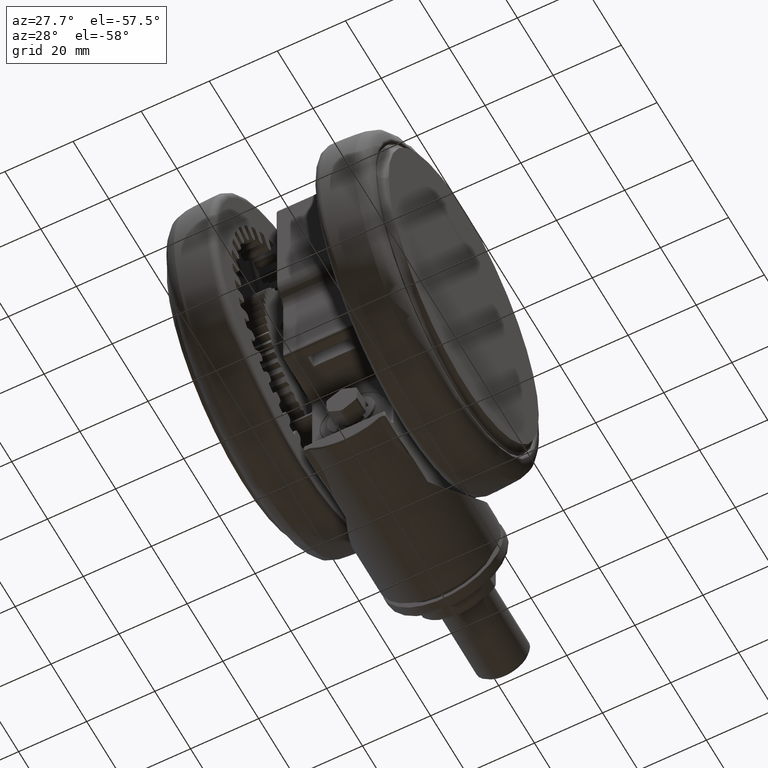
[diagram: clean part render]
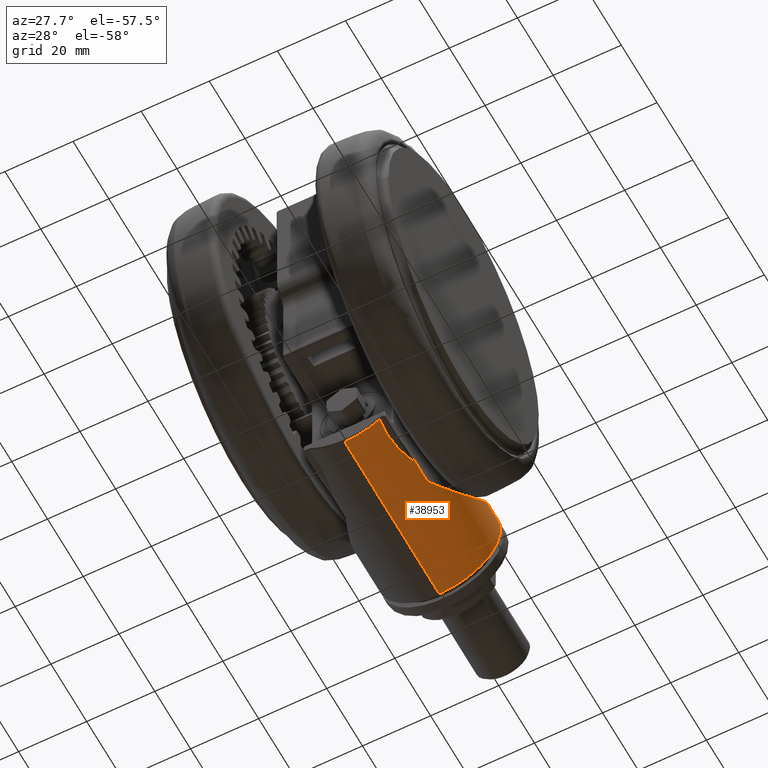
[diagram: same view with one face highlighted and labeled with its STEP entity id]
A machine part, auxiliary view. The second image highlights one B-rep face of the part: STEP entity #38953.
In plain terms, the highlighted cylindrical surface (partial cylindrical patch) has radius 18 mm, axis along (0, -1, 0).
Its self-contained STEP definition (entity closure, byte-faithful):
#259 = CARTESIAN_POINT ( 'NONE',  ( 5.208460255065405800, 34.90163937428630400, -32.59999999999991600 ) ) ;
#380 = CARTESIAN_POINT ( 'NONE',  ( -46.80610816300347900, 18.94874928790355600, -26.66894238465398100 ) ) ;
#883 = CARTESIAN_POINT ( 'NONE',  ( -10.12879878138801000, 48.67532829621426800, -20.64902920569760200 ) ) ;
#982 = CARTESIAN_POINT ( 'NONE',  ( 5.508268310410297600, 49.69569008224175400, -22.35079618797655200 ) ) ;
#1162 = CARTESIAN_POINT ( 'NONE',  ( -9.836121417387840200, 49.02316548377790900, -21.05956831018369300 ) ) ;
#1253 = CARTESIAN_POINT ( 'NONE',  ( -8.458607850521056900, 49.29505475641307300, -21.42049570559552100 ) ) ;
#1380 = ORIENTED_EDGE ( 'NONE', *, *, #35941, .T. ) ;
#2993 = CARTESIAN_POINT ( 'NONE',  ( -47.37391941154947300, 17.96354899973096100, -32.59999999999947600 ) ) ;
#3458 = CYLINDRICAL_SURFACE ( 'NONE', #15402, 18.00000000000000000 ) ;
#3866 = VECTOR ( 'NONE', #39208, 1000.000000000000100 ) ;
#4053 = CARTESIAN_POINT ( 'NONE',  ( -45.71633819742093200, 24.78885058765417400, -18.43902796048009700 ) ) ;
#4324 = CARTESIAN_POINT ( 'NONE',  ( -36.59850879199104400, 36.98245350613385100, -14.59909914041927900 ) ) ;
#4335 = VERTEX_POINT ( 'NONE', #69171 ) ;
#4583 = CARTESIAN_POINT ( 'NONE',  ( -17.98463906541136800, 48.79082047030505000, -20.59999999999991300 ) ) ;
#4980 = ORIENTED_EDGE ( 'NONE', *, *, #12434, .T. ) ;
#5840 = LINE ( 'NONE', #32859, #3866 ) ;
#6473 = CARTESIAN_POINT ( 'NONE',  ( -47.36942829705646600, 17.97133350807479200, -32.05015728534068100 ) ) ;
#6622 = DIRECTION ( 'NONE',  ( -0.02026128721468462400, -0.9997947190500676700, 0.0000000000000000000 ) ) ;
#6748 = CARTESIAN_POINT ( 'NONE',  ( -46.19583124528033100, 19.99659064075680700, -24.17847804241848000 ) ) ;
#7115 = CARTESIAN_POINT ( 'NONE',  ( -47.91585404424890300, 53.98192318317314400, -32.59999999999991600 ) ) ;
#7243 = CARTESIAN_POINT ( 'NONE',  ( -10.31607480746920100, 48.73090466135531100, -20.70758617109215600 ) ) ;
#7290 = DIRECTION ( 'NONE',  ( 0.02026128721468471700, 0.9997947190500676700, 0.0000000000000000000 ) ) ;
#9033 = VERTEX_POINT ( 'NONE', #51243 ) ;
#9205 = EDGE_CURVE ( 'NONE', #27348, #4335, #59922, .T. ) ;
#9238 = CARTESIAN_POINT ( 'NONE',  ( -47.41595668472386600, 53.97179253956579700, -32.59999999999991600 ) ) ;
#9861 = AXIS2_PLACEMENT_3D ( 'NONE', #34626, #78743, #40986 ) ;
#10358 = CARTESIAN_POINT ( 'NONE',  ( -44.58209523251809300, 26.77715708612111500, -17.06722302455355200 ) ) ;
#10608 = ORIENTED_EDGE ( 'NONE', *, *, #70661, .F. ) ;
#10632 = CARTESIAN_POINT ( 'NONE',  ( -33.97069500654485800, 39.37947829986181600, -14.97091970685104400 ) ) ;
#11330 = VERTEX_POINT ( 'NONE', #49902 ) ;
#11833 = EDGE_CURVE ( 'NONE', #25409, #26426, #70778, .T. ) ;
#12434 = EDGE_CURVE ( 'NONE', #11330, #33357, #48000, .T. ) ;
#12489 = CARTESIAN_POINT ( 'NONE',  ( -47.37391941154947300, 17.96354899973096100, -32.59999999999947600 ) ) ;
#12775 = CARTESIAN_POINT ( 'NONE',  ( -47.34500460404444800, 18.01351177711193300, -31.22402544567789900 ) ) ;
#13053 = CARTESIAN_POINT ( 'NONE',  ( -45.70494533535507700, 20.80943180607945200, -22.83139053222631200 ) ) ;
#13531 = CARTESIAN_POINT ( 'NONE',  ( -10.36808295095618200, 48.78906492903593800, -20.77277128949318200 ) ) ;
#13575 = CARTESIAN_POINT ( 'NONE',  ( -48.28055721411323000, 35.98561824027192600, -32.59999999999991600 ) ) ;
#15167 = EDGE_LOOP ( 'NONE', ( #38815, #1380, #22545, #38008, #22400, #62224, #41728, #10608, #4980, #53139 ) ) ;
#15402 = AXIS2_PLACEMENT_3D ( 'NONE', #13575, #26339, #7290 ) ;
#16689 = CARTESIAN_POINT ( 'NONE',  ( -43.26182099622145900, 28.86308397326137200, -16.00676665192270000 ) ) ;
#16810 = CARTESIAN_POINT ( 'NONE',  ( -46.93363749704237600, 22.38774754356340000, -20.77142857142849800 ) ) ;
#16972 = CARTESIAN_POINT ( 'NONE',  ( -31.94328965898068900, 41.04091219697896500, -15.41520545364266700 ) ) ;
#18229 = FACE_OUTER_BOUND ( 'NONE', #15167, .T. ) ;
#19130 = CARTESIAN_POINT ( 'NONE',  ( -47.25802734614757800, 18.16420966032198000, -29.84760922410377000 ) ) ;
#19395 = CARTESIAN_POINT ( 'NONE',  ( -45.44177878889255600, 21.23917866191993700, -22.18888977177217500 ) ) ;
#19620 = CARTESIAN_POINT ( 'NONE',  ( -9.317223563194769300, 48.61517141800131700, -20.59999999999991300 ) ) ;
#19893 = CARTESIAN_POINT ( 'NONE',  ( -10.35141086583549500, 48.82821288497991200, -20.81821663925438400 ) ) ;
#19990 = CARTESIAN_POINT ( 'NONE',  ( 0.4073160160713169000, 50.01466655658724400, -22.66917024715937500 ) ) ;
#21643 = EDGE_CURVE ( 'NONE', #26426, #40094, #26133, .T. ) ;
#22400 = ORIENTED_EDGE ( 'NONE', *, *, #21643, .T. ) ;
#22518 = CARTESIAN_POINT ( 'NONE',  ( -46.66559130463537000, 22.94968200599920400, -20.12077271807990500 ) ) ;
#22545 = ORIENTED_EDGE ( 'NONE', *, *, #45779, .T. ) ;
#23055 = CARTESIAN_POINT ( 'NONE',  ( -42.03849610139560900, 30.60930039958016000, -15.37821947593362300 ) ) ;
#23331 = CARTESIAN_POINT ( 'NONE',  ( -28.45858199122974600, 43.55429254669759600, -16.42608571866067300 ) ) ;
#23381 = EDGE_CURVE ( 'NONE', #27348, #33357, #42031, .T. ) ;
#24934 = CARTESIAN_POINT ( 'NONE',  ( -48.55545808361976200, 22.42061446323122100, -20.77142857142849800 ) ) ;
#25186 = VECTOR ( 'NONE', #32511, 1000.000000000000100 ) ;
#25201 = DIRECTION ( 'NONE',  ( -0.9997947190500677800, 0.02026128721468463100, -0.0000000000000000000 ) ) ;
#25409 = VERTEX_POINT ( 'NONE', #68070 ) ;
#25520 = CARTESIAN_POINT ( 'NONE',  ( -47.17062631404569800, 18.31622912952900600, -29.03160975076657400 ) ) ;
#25797 = CARTESIAN_POINT ( 'NONE',  ( -44.96264339509724600, 22.00920216776547600, -21.15973609959132400 ) ) ;
#26133 = B_SPLINE_CURVE_WITH_KNOTS ( 'NONE', 3,
 ( #41899, #22518, #79644, #4053, #48276, #10358, #54574, #16689, #60913, #23055, #67247, #29413, #73599, #35794, #79926, #42160, #4324, #48539, #10632, #54833, #16972, #61188, #23331, #67515, #29678, #73881, #36060, #80201, #42446, #4583 ),
 .UNSPECIFIED., .F., .F.,
 ( 4, 2, 2, 2, 2, 2, 2, 2, 2, 2, 2, 2, 2, 2, 4 ),
 ( -0.0002350967709736849700, 0.002424375685461165600, 0.005083848141896016000, 0.007743320598330867200, 0.01040279305476571700, 0.01173252928298314200, 0.01306226551120057500, 0.01572173796763544000, 0.02104068288050516700, 0.02370015533694003200, 0.02635962779337489700, 0.03167857270624460000, 0.03433804516267945100, 0.03699751761911428800, 0.04231646253198399100 ),
 .UNSPECIFIED. ) ;
#26285 = CARTESIAN_POINT ( 'NONE',  ( -10.30062889966497700, 48.86973162580477500, -20.86750403550960100 ) ) ;
#26339 = DIRECTION ( 'NONE',  ( 0.9997947190500678900, -0.02026128721468463100, 0.0000000000000000000 ) ) ;
#26385 = CARTESIAN_POINT ( 'NONE',  ( -2.794683609903971400, 49.92594403084346800, -22.44060121328792300 ) ) ;
#26426 = VERTEX_POINT ( 'NONE', #16810 ) ;
#27348 = VERTEX_POINT ( 'NONE', #9238 ) ;
#29413 = CARTESIAN_POINT ( 'NONE',  ( -41.25514471082824700, 31.65730050788932800, -15.08945188103850500 ) ) ;
#29678 = CARTESIAN_POINT ( 'NONE',  ( -25.54779935961612800, 45.29912993522994200, -17.47514633043016400 ) ) ;
#31846 = CARTESIAN_POINT ( 'NONE',  ( -47.08854409280827700, 18.45898036013048600, -28.36697905273321400 ) ) ;
#32350 = CARTESIAN_POINT ( 'NONE',  ( -9.643790475028433600, 48.62447343068365100, -20.60299232262243800 ) ) ;
#32511 = DIRECTION ( 'NONE',  ( 0.9997947190500677800, -0.02026128721468463100, 0.0000000000000000000 ) ) ;
#32634 = CARTESIAN_POINT ( 'NONE',  ( -10.20177868179733900, 48.91569713506947900, -20.92355610050705300 ) ) ;
#32732 = CARTESIAN_POINT ( 'NONE',  ( -4.710019837800829600, 49.78173366784209700, -22.17764385249739300 ) ) ;
#32859 = CARTESIAN_POINT ( 'NONE',  ( -48.64526038397755100, 17.98931329737070300, -32.59999999999991600 ) ) ;
#33184 = VECTOR ( 'NONE', #35247, 1000.000000000000100 ) ;
#33357 = VERTEX_POINT ( 'NONE', #50134 ) ;
#34626 = CARTESIAN_POINT ( 'NONE',  ( -47.78065985458819400, 35.97548759666457800, -32.59999999999991600 ) ) ;
#35247 = DIRECTION ( 'NONE',  ( 0.9997947190500677800, -0.02026128721468463100, 0.0000000000000000000 ) ) ;
#35794 = CARTESIAN_POINT ( 'NONE',  ( -40.15874696992536700, 33.04599876532141400, -14.80066505353697600 ) ) ;
#35941 = EDGE_CURVE ( 'NONE', #4335, #42458, #5840, .T. ) ;
#36060 = CARTESIAN_POINT ( 'NONE',  ( -23.31607539791044900, 46.48705694181645500, -18.34779846884720200 ) ) ;
#36867 = B_SPLINE_CURVE_WITH_KNOTS ( 'NONE', 3,
 ( #19620, #57514, #32350, #76508, #38729, #883, #45108, #7243, #51449, #13531, #57773, #19893, #64101, #26285, #70469, #32634, #76794, #38995, #1162, #45394 ),
 .UNSPECIFIED., .F., .F.,
 ( 4, 2, 2, 2, 2, 2, 2, 2, 2, 4 ),
 ( 0.0000000000000000000, 0.0004898370086316540100, 0.0007347555129474819300, 0.0009796740172633097400, 0.001102133269421225700, 0.001163362895500180800, 0.001224592521579135800, 0.001347051773737056300, 0.001469511025894976700, 0.001959348034526689700 ),
 .UNSPECIFIED. ) ;
#38008 = ORIENTED_EDGE ( 'NONE', *, *, #11833, .T. ) ;
#38232 = CARTESIAN_POINT ( 'NONE',  ( -46.90413105651305900, 18.77905623458281400, -27.18606615225969100 ) ) ;
#38729 = CARTESIAN_POINT ( 'NONE',  ( -9.968779099175728600, 48.65180171766355200, -20.62622777016942900 ) ) ;
#38815 = ORIENTED_EDGE ( 'NONE', *, *, #9205, .T. ) ;
#38824 = CARTESIAN_POINT ( 'NONE',  ( 4.235933718449901500, 49.83670947961354600, -22.51713027470440300 ) ) ;
#38953 = ADVANCED_FACE ( 'NONE', ( #18229 ), #3458, .T. ) ;
#38995 = CARTESIAN_POINT ( 'NONE',  ( -9.989350159093294900, 48.98870847976270700, -21.01461576730194000 ) ) ;
#39087 = CARTESIAN_POINT ( 'NONE',  ( -7.222161667674359200, 49.49173547976835200, -21.71011971477577200 ) ) ;
#39208 = DIRECTION ( 'NONE',  ( 0.9997947190500677800, -0.02026128721468463100, 0.0000000000000000000 ) ) ;
#40094 = VERTEX_POINT ( 'NONE', #40226 ) ;
#40226 = CARTESIAN_POINT ( 'NONE',  ( -17.98463906541136800, 48.79082047030505000, -20.59999999999991300 ) ) ;
#40986 = DIRECTION ( 'NONE',  ( 0.02026128721468471700, 0.9997947190500676700, 0.0000000000000000000 ) ) ;
#41335 = B_SPLINE_CURVE_WITH_KNOTS ( 'NONE', 3,
 ( #982, #38824, #57866, #19990, #64202, #26385, #70559, #32732, #76892, #39087, #1253, #45492 ),
 .UNSPECIFIED., .F., .F.,
 ( 4, 2, 2, 2, 2, 4 ),
 ( 0.0005012450040617497300, 0.004335061960526683700, 0.008168878916991617300, 0.01008578739522408500, 0.01200269587345655300, 0.01583651282992148300 ),
 .UNSPECIFIED. ) ;
#41728 = ORIENTED_EDGE ( 'NONE', *, *, #56674, .T. ) ;
#41899 = CARTESIAN_POINT ( 'NONE',  ( -46.93363749704237600, 22.38774754356340000, -20.77142857142849800 ) ) ;
#42031 = LINE ( 'NONE', #7115, #25186 ) ;
#42160 = CARTESIAN_POINT ( 'NONE',  ( -37.83677632689593700, 35.71397966096111500, -14.54922444642155500 ) ) ;
#42446 = CARTESIAN_POINT ( 'NONE',  ( -19.53490972407631400, 48.21937222564977100, -19.92611461015768300 ) ) ;
#42458 = VERTEX_POINT ( 'NONE', #2993 ) ;
#44015 = B_SPLINE_CURVE_WITH_KNOTS ( 'NONE', 3,
 ( #12489, #75746, #44331, #6473, #50678, #12775, #57015, #19130, #63337, #25520, #69686, #31846, #76031, #38232, #380, #44604, #6748, #50948, #13053, #57296, #19395, #63615, #25797, #69975 ),
 .UNSPECIFIED., .F., .F.,
 ( 4, 2, 1, 2, 2, 2, 1, 2, 2, 2, 2, 2, 4 ),
 ( 0.4997468787437610600, 0.5150958705228000400, 0.5304448623018389600, 0.5611428458599168100, 0.6225388129760721600, 0.6378878047551109800, 0.6532367965341499000, 0.6839347800922276300, 0.7453307472083835500, 0.8681226814406954900, 0.8988206649987733300, 0.9295186485568512900, 0.9909146156730069800 ),
 .UNSPECIFIED. ) ;
#44331 = CARTESIAN_POINT ( 'NONE',  ( -47.37303423832288700, 17.96510258420998000, -32.32524714337418500 ) ) ;
#44470 = DIRECTION ( 'NONE',  ( -0.9997947190500678900, 0.02026128721468463100, 0.0000000000000000000 ) ) ;
#44604 = CARTESIAN_POINT ( 'NONE',  ( -46.47077972725040200, 19.52634019890783200, -25.14383960947956000 ) ) ;
#45108 = CARTESIAN_POINT ( 'NONE',  ( -10.20999723066566200, 48.68955853925322700, -20.66315964259872500 ) ) ;
#45127 = VERTEX_POINT ( 'NONE', #67207 ) ;
#45394 = CARTESIAN_POINT ( 'NONE',  ( -9.681810046279910200, 49.05362297433098500, -21.10000000000205500 ) ) ;
#45492 = CARTESIAN_POINT ( 'NONE',  ( -9.681810046279910200, 49.05362297433098500, -21.10000000000205500 ) ) ;
#45779 = EDGE_CURVE ( 'NONE', #42458, #25409, #44015, .T. ) ;
#46914 = EDGE_CURVE ( 'NONE', #40094, #9033, #48040, .T. ) ;
#48000 = CIRCLE ( 'NONE', #48321, 18.00000000000000000 ) ;
#48040 = LINE ( 'NONE', #73056, #33184 ) ;
#48276 = CARTESIAN_POINT ( 'NONE',  ( -45.36030675330123100, 25.43661841222331800, -17.94862537326115500 ) ) ;
#48321 = AXIS2_PLACEMENT_3D ( 'NONE', #259, #44470, #6622 ) ;
#48539 = CARTESIAN_POINT ( 'NONE',  ( -34.63699770294505200, 38.79503044326653300, -14.85543803491044400 ) ) ;
#49902 = CARTESIAN_POINT ( 'NONE',  ( 5.508268310410297600, 49.69569008224175400, -22.35079618797655200 ) ) ;
#50134 = CARTESIAN_POINT ( 'NONE',  ( 5.573163424929724400, 52.89794431718751600, -32.59999999999991600 ) ) ;
#50678 = CARTESIAN_POINT ( 'NONE',  ( -47.36129846779867600, 17.98536433711959100, -31.63728453705371600 ) ) ;
#50948 = CARTESIAN_POINT ( 'NONE',  ( -45.78775728939854900, 20.67304367993507300, -23.04829429824949800 ) ) ;
#51243 = CARTESIAN_POINT ( 'NONE',  ( -9.317223563194769300, 48.61517141800131700, -20.59999999999991300 ) ) ;
#51449 = CARTESIAN_POINT ( 'NONE',  ( -10.35163393069293400, 48.74964249280130000, -20.72803437543432300 ) ) ;
#53139 = ORIENTED_EDGE ( 'NONE', *, *, #23381, .F. ) ;
#53977 = VECTOR ( 'NONE', #25201, 1000.000000000000100 ) ;
#54574 = CARTESIAN_POINT ( 'NONE',  ( -44.15747090839265400, 27.47326167876445500, -16.67543835632985200 ) ) ;
#54833 = CARTESIAN_POINT ( 'NONE',  ( -32.62475206300621300, 40.50157560510182000, -15.25067207917558700 ) ) ;
#56674 = EDGE_CURVE ( 'NONE', #9033, #45127, #36867, .T. ) ;
#57015 = CARTESIAN_POINT ( 'NONE',  ( -47.30152884670413000, 18.08875959430527300, -30.39787992081482700 ) ) ;
#57296 = CARTESIAN_POINT ( 'NONE',  ( -45.53169302017720100, 21.09294693031283400, -22.40089325204523600 ) ) ;
#57514 = CARTESIAN_POINT ( 'NONE',  ( -9.480620882696298300, 48.61848273777272300, -20.59999999999990900 ) ) ;
#57773 = CARTESIAN_POINT ( 'NONE',  ( -10.36592290995543100, 48.80312001083477500, -20.78896330896517200 ) ) ;
#57866 = CARTESIAN_POINT ( 'NONE',  ( 2.961317122103751800, 49.92859499974905200, -22.61750198800225000 ) ) ;
#59922 = CIRCLE ( 'NONE', #9861, 18.00000000000000000 ) ;
#60913 = CARTESIAN_POINT ( 'NONE',  ( -42.78839836796424100, 29.56130212597685900, -15.72640318534502800 ) ) ;
#61188 = CARTESIAN_POINT ( 'NONE',  ( -29.87308023745582000, 42.59773209726770900, -15.97168339570050000 ) ) ;
#62224 = ORIENTED_EDGE ( 'NONE', *, *, #46914, .T. ) ;
#63337 = CARTESIAN_POINT ( 'NONE',  ( -47.18549880859004000, 18.29035450637806500, -29.16341347554444500 ) ) ;
#63615 = CARTESIAN_POINT ( 'NONE',  ( -45.16218139414632300, 21.69082659049657000, -21.56316457163503100 ) ) ;
#64101 = CARTESIAN_POINT ( 'NONE',  ( -10.33984720132797500, 48.83938045037564300, -20.83140170439789100 ) ) ;
#64202 = CARTESIAN_POINT ( 'NONE',  ( -0.8720700331987209000, 50.00884917023980600, -22.62035480975970000 ) ) ;
#67207 = CARTESIAN_POINT ( 'NONE',  ( -9.681810046279910200, 49.05362297433098500, -21.10000000000205500 ) ) ;
#67247 = CARTESIAN_POINT ( 'NONE',  ( -41.78189586441025200, 30.95875589847994300, -15.27425498229156800 ) ) ;
#67515 = CARTESIAN_POINT ( 'NONE',  ( -26.28295280676187700, 44.87665375876743200, -17.20085943518614300 ) ) ;
#68070 = CARTESIAN_POINT ( 'NONE',  ( -44.74999515477899300, 22.34351570327861900, -20.77139863847377300 ) ) ;
#69171 = CARTESIAN_POINT ( 'NONE',  ( -48.14536302445252100, 17.97918265376336000, -32.59999999999992300 ) ) ;
#69686 = CARTESIAN_POINT ( 'NONE',  ( -47.13882651154256100, 18.37153826514860500, -28.76538365672743000 ) ) ;
#69975 = CARTESIAN_POINT ( 'NONE',  ( -44.74999515477899300, 22.34351570327861900, -20.77139863847377300 ) ) ;
#70469 = CARTESIAN_POINT ( 'NONE',  ( -10.26837615907577300, 48.88618029227961200, -20.88744721936747300 ) ) ;
#70559 = CARTESIAN_POINT ( 'NONE',  ( -3.437480156750822000, 49.88576582763788300, -22.36286541697043600 ) ) ;
#70661 = EDGE_CURVE ( 'NONE', #11330, #45127, #41335, .T. ) ;
#70778 = LINE ( 'NONE', #24934, #53977 ) ;
#73056 = CARTESIAN_POINT ( 'NONE',  ( -48.00872352097113800, 49.39927197231941100, -20.59999999999991300 ) ) ;
#73599 = CARTESIAN_POINT ( 'NONE',  ( -40.98414942316342300, 32.00742811856250100, -15.00843619449994800 ) ) ;
#73881 = CARTESIAN_POINT ( 'NONE',  ( -24.06309610463345500, 46.10498173144492300, -18.04912005316469200 ) ) ;
#75746 = CARTESIAN_POINT ( 'NONE',  ( -47.37393018440835100, 17.96354922217871300, -32.46391276032962000 ) ) ;
#76031 = CARTESIAN_POINT ( 'NONE',  ( -47.03051478755946100, 18.55979553274611500, -27.97168658441553600 ) ) ;
#76508 = CARTESIAN_POINT ( 'NONE',  ( -9.887671595931140100, 48.64370582081427600, -20.61899854181324100 ) ) ;
#76794 = CARTESIAN_POINT ( 'NONE',  ( -10.16700762273519000, 48.92864598078875800, -20.93959783856420000 ) ) ;
#76892 = CARTESIAN_POINT ( 'NONE',  ( -5.341335828892548300, 49.71786717703096100, -22.07010517615592300 ) ) ;
#78743 = DIRECTION ( 'NONE',  ( 0.9997947190500678900, -0.02026128721468463100, 0.0000000000000000000 ) ) ;
#79644 = CARTESIAN_POINT ( 'NONE',  ( -46.36868496363389600, 23.54602800055264900, -19.52441469306740300 ) ) ;
#79926 = CARTESIAN_POINT ( 'NONE',  ( -39.59115737555119800, 33.72392849374189400, -14.70836501901564500 ) ) ;
#80201 = CARTESIAN_POINT ( 'NONE',  ( -21.05959816232080000, 47.57384969456891400, -19.27208178468978500 ) ) ;